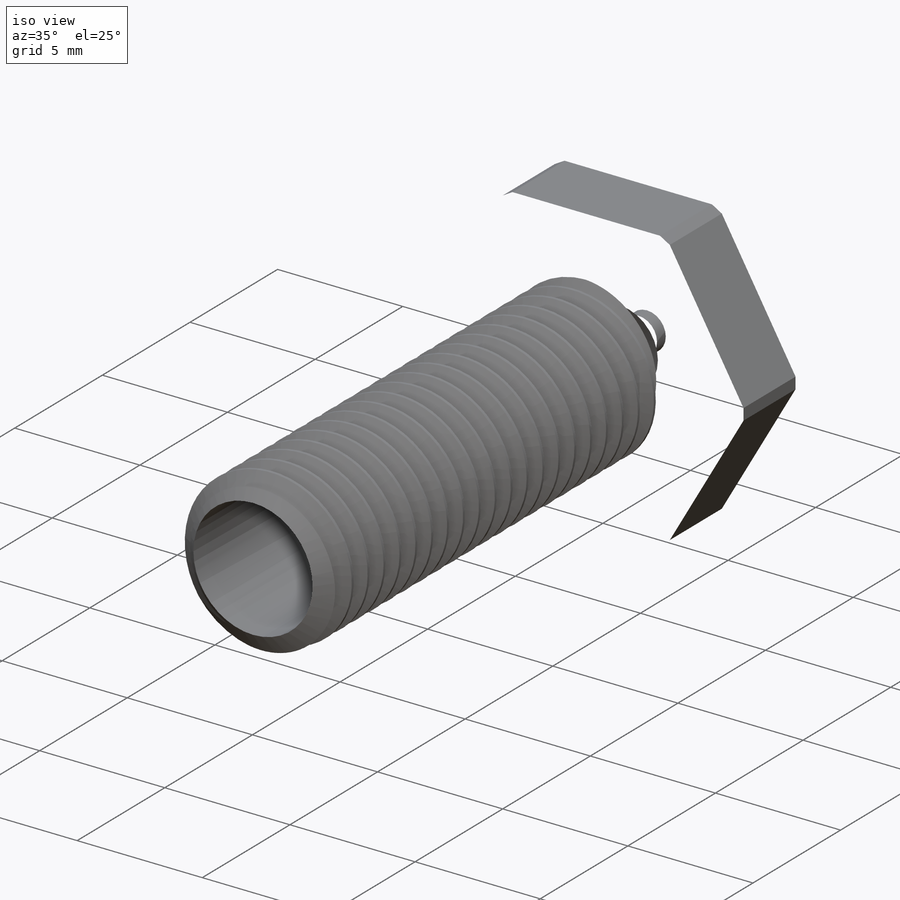
[diagram: iso view]
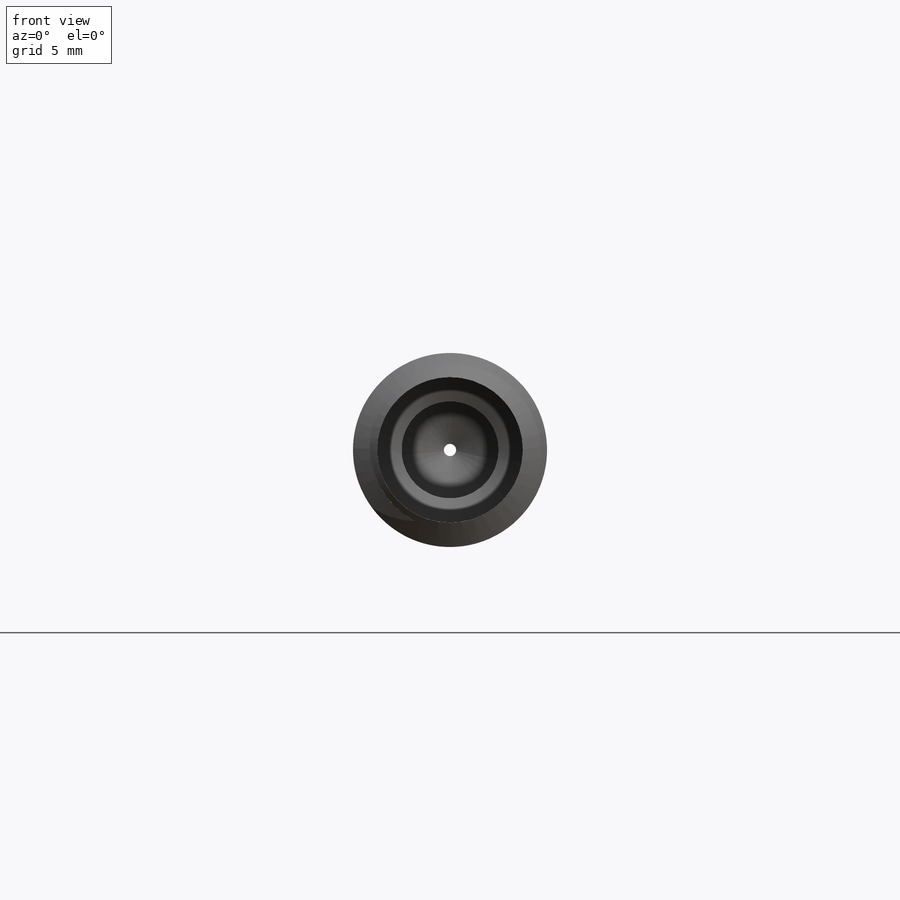
[diagram: front view]
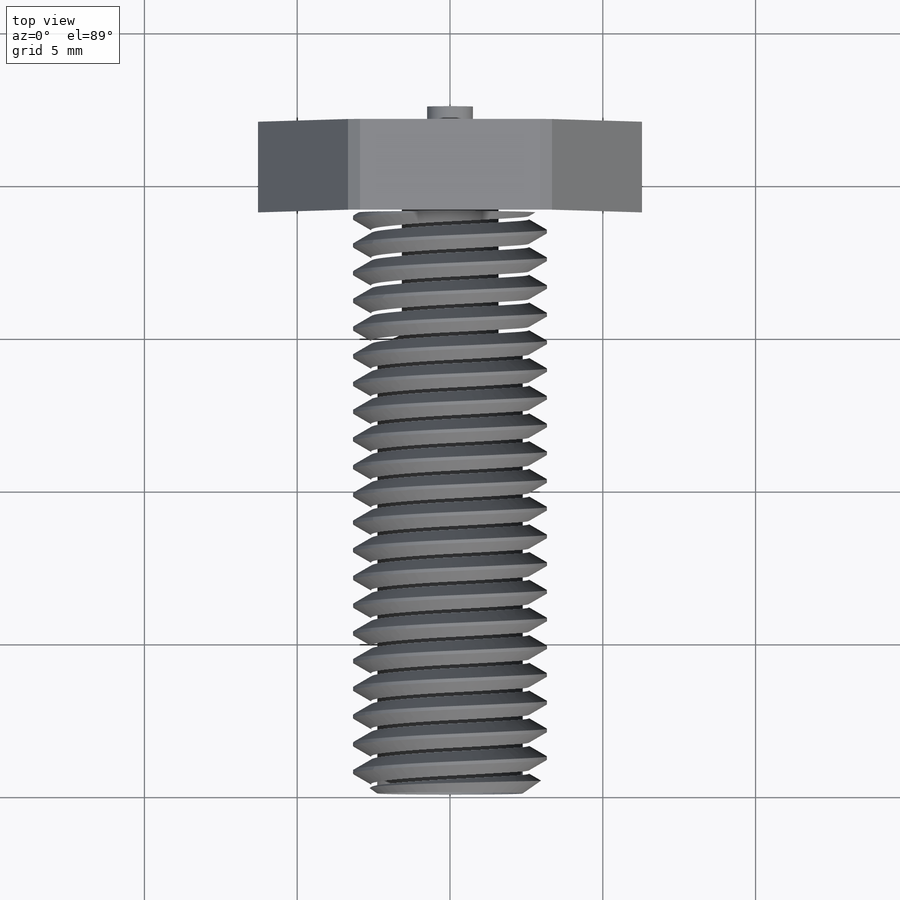
[diagram: top view]
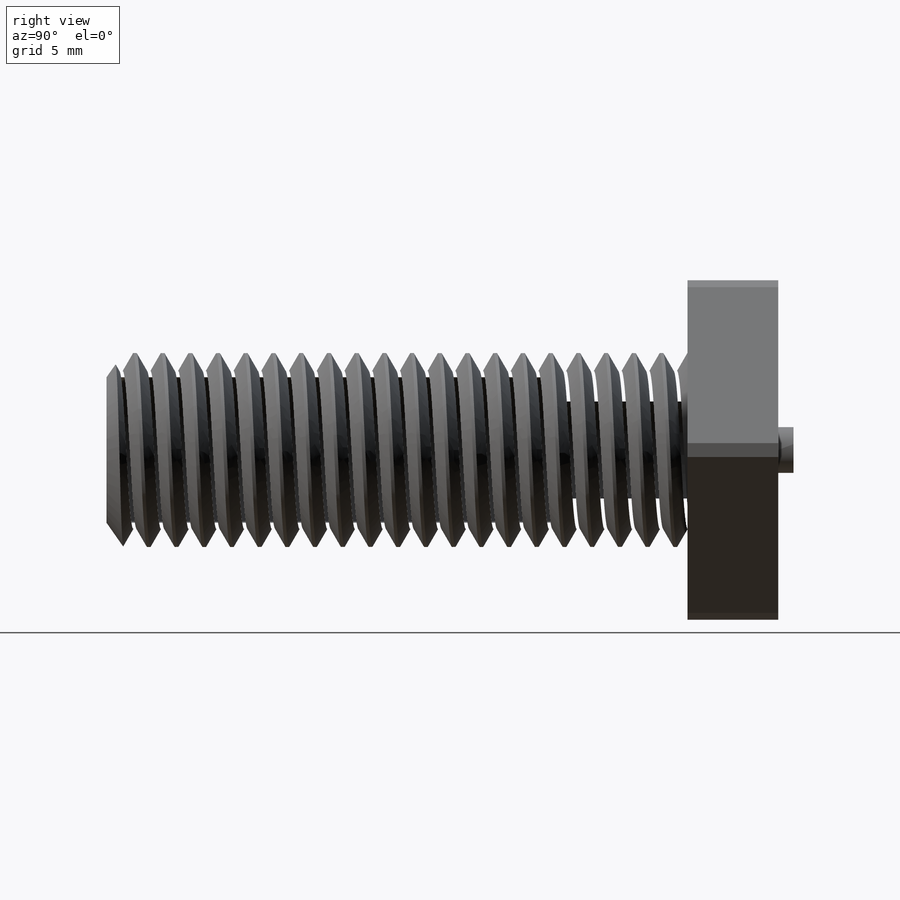
[diagram: right view]
SOLIDWORKS PART (.sldprt)
format: sldprt  version: not decoded by parser v0  size: 1,028,608 bytes
history: native  units: mm
features: sketch x8, cut_revolve x3, extrude x2, material x1, helix x1, sweep x1, revolve x1 (+14 scaffold rows collapsed)
feature tree (31):
  scaffold x14  (default folders/planes/origin — collapsed)
  material  "AISI 304"
  sketch  "Sketch1"  dims[OD=6.35mm]
  extrude  "Extrude1"  Depth=19.05mm screw length=19.05mm
  sketch  "Sketch2"
  helix  "Helix/Spiral1"  Pitch=19.957143mm pitch=0.907143mm
  sketch  "Sketch3"  dims[c1.D1=~0.113393mm c1.D2=~0.453571mm c1.D3=~1.069256mm c2.D3=60.0deg]
  sweep  "Cut-Sweep1"
  sketch  "Sketch4"  dims[c1.D1=~3.187432mm c2.D1=55.0deg c2.D2=0.254mm]
  cut_revolve  "Cut-Revolve1"  Angle=360deg
  sketch  "Sketch5"  dims[c1.Thread min=87.3125mm c1.D2=0.635mm c1.D3=0.3302mm c1.D1=0.3302mm c2.D2=0.127mm c2.D3=1.0541mm c3.D3=20.0deg]
  revolve  "partially thread"  Angle=360deg
  sketch  "Sketch6"  dims[head dia=9.525mm D1=11.1125mm D2=~12.83161mm]
  extrude  "Extrude2"  Depth=3.96875mm head depth=3.96875mm
  sketch  "Sketch8"  dims[c1.D1=0.127mm c1.D2=10.7696mm c1.D3=~0.904005mm c2.D3=30.0deg]
  cut_revolve  "Cut-Revolve2"  Angle=360deg
  sketch  "Sketch9"  dims[c1.D1=0.4mm c1.D2=1.0mm c1.D3=~0.590462mm c2.D3=65.0deg c2.D4=4.7625mm c2.D5=0.5mm c2.D6=2.0mm c2.D2=3.175mm c3.D6=15.0mm c3.D5=0.5mm c3.D7=0.5mm c3.D8=1.5mm c3.D9=1.0mm c3.D10=4.0mm]
  cut_revolve  "Cut-Revolve3"  Angle=360deg
decode coverage: 14 of 16 modeling features carry decoded parameters
note: ~ marks probable driven/reference dimensions
note: suppression state not decoded; provenance and decode notes live in map.json
